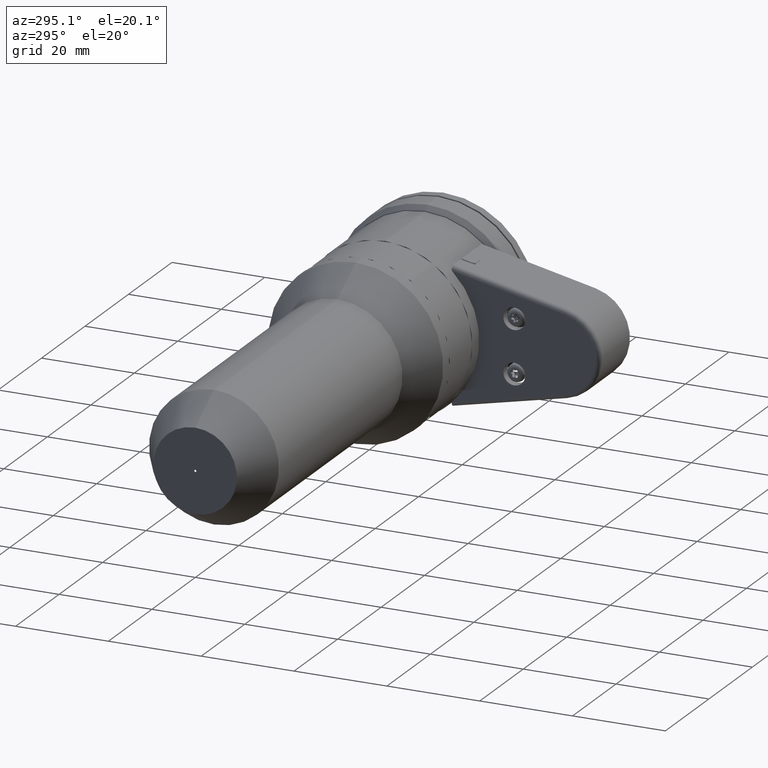
[diagram: clean part render]
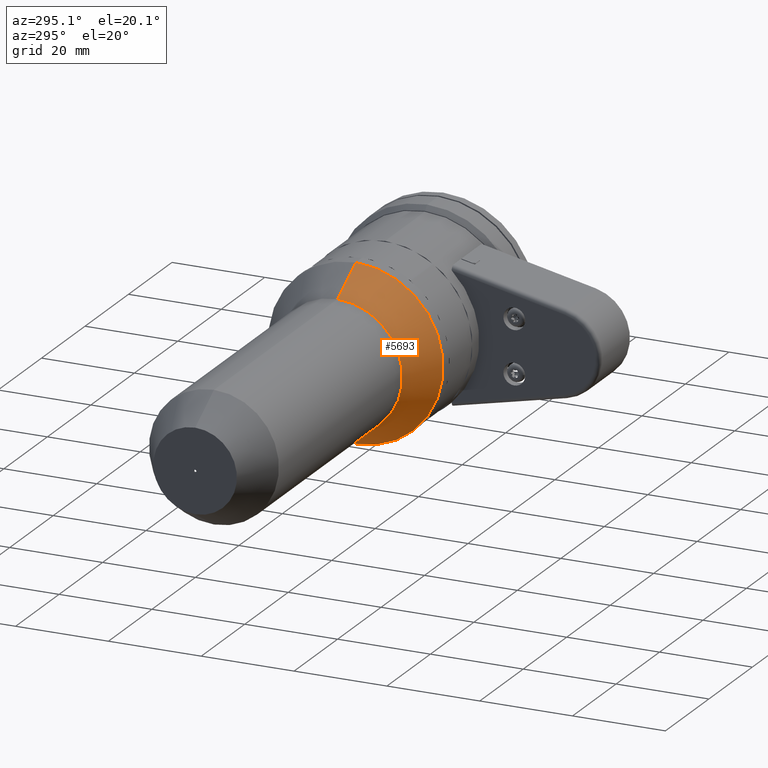
[diagram: same view with one face highlighted and labeled with its STEP entity id]
A machine part, auxiliary view. The second image highlights one B-rep face of the part: STEP entity #5693.
In plain terms, the highlighted conical surface has half-angle 30 deg.
Its self-contained STEP definition (entity closure, byte-faithful):
#105 = DIRECTION ( 'NONE',  ( -1.000000000000000000, 0.0000000000000000000, 0.0000000000000000000 ) ) ;
#146 = CARTESIAN_POINT ( 'NONE',  ( 65.35290000000000532, 0.0000000000000000000, 1.540743955509788682E-29 ) ) ;
#311 = CIRCLE ( 'NONE', #5209, 18.85000000000000142 ) ;
#502 = DIRECTION ( 'NONE',  ( 0.0000000000000000000, 0.0000000000000000000, 1.000000000000000000 ) ) ;
#554 = VERTEX_POINT ( 'NONE', #5051 ) ;
#721 = LINE ( 'NONE', #3957, #6114 ) ;
#807 = CIRCLE ( 'NONE', #1068, 14.00000000000000178 ) ;
#853 = LINE ( 'NONE', #7229, #2253 ) ;
#875 = DIRECTION ( 'NONE',  ( 0.0000000000000000000, 0.0000000000000000000, -1.000000000000000000 ) ) ;
#1068 = AXIS2_PLACEMENT_3D ( 'NONE', #146, #105, #5156 ) ;
#1302 = EDGE_CURVE ( 'NONE', #6733, #3465, #853, .T. ) ;
#1443 = DIRECTION ( 'NONE',  ( 1.000000000000000000, 0.0000000000000000000, 0.0000000000000000000 ) ) ;
#1653 = ORIENTED_EDGE ( 'NONE', *, *, #1302, .F. ) ;
#2253 = VECTOR ( 'NONE', #2752, 1000.000000000000227 ) ;
#2752 = DIRECTION ( 'NONE',  ( 0.8660254037844373753, 6.123233995736791920E-17, 0.5000000000000021094 ) ) ;
#2939 = ORIENTED_EDGE ( 'NONE', *, *, #4702, .T. ) ;
#3428 = EDGE_CURVE ( 'NONE', #4093, #6733, #807, .T. ) ;
#3465 = VERTEX_POINT ( 'NONE', #7111 ) ;
#3867 = ORIENTED_EDGE ( 'NONE', *, *, #7945, .T. ) ;
#3957 = CARTESIAN_POINT ( 'NONE',  ( 73.75334641670900737, 0.0000000000000000000, -18.85000000000000142 ) ) ;
#4093 = VERTEX_POINT ( 'NONE', #4640 ) ;
#4440 = CARTESIAN_POINT ( 'NONE',  ( 65.35290000000000532, 0.0000000000000000000, 14.00000000000000178 ) ) ;
#4561 = FACE_OUTER_BOUND ( 'NONE', #7468, .T. ) ;
#4640 = CARTESIAN_POINT ( 'NONE',  ( 65.35290000000000532, 1.714505518806294835E-15, -14.00000000000000178 ) ) ;
#4702 = EDGE_CURVE ( 'NONE', #4093, #554, #721, .T. ) ;
#5051 = CARTESIAN_POINT ( 'NONE',  ( 73.75334641670900737, 0.0000000000000000000, -18.85000000000000142 ) ) ;
#5106 = CONICAL_SURFACE ( 'NONE', #6158, 18.85000000000000142, 0.5235987755983013692 ) ;
#5156 = DIRECTION ( 'NONE',  ( 0.0000000000000000000, 0.0000000000000000000, 1.000000000000000000 ) ) ;
#5206 = ORIENTED_EDGE ( 'NONE', *, *, #3428, .F. ) ;
#5209 = AXIS2_PLACEMENT_3D ( 'NONE', #8135, #5642, #502 ) ;
#5642 = DIRECTION ( 'NONE',  ( -1.000000000000000000, 0.0000000000000000000, 0.0000000000000000000 ) ) ;
#5693 = ADVANCED_FACE ( 'NONE', ( #4561 ), #5106, .T. ) ;
#5737 = DIRECTION ( 'NONE',  ( 0.8660254037844373753, 0.0000000000000000000, -0.5000000000000021094 ) ) ;
#6114 = VECTOR ( 'NONE', #5737, 1000.000000000000227 ) ;
#6158 = AXIS2_PLACEMENT_3D ( 'NONE', #7670, #1443, #875 ) ;
#6733 = VERTEX_POINT ( 'NONE', #4440 ) ;
#7111 = CARTESIAN_POINT ( 'NONE',  ( 73.75334641670900737, 2.308459216392761329E-15, 18.85000000000000142 ) ) ;
#7229 = CARTESIAN_POINT ( 'NONE',  ( 73.75334641670900737, 2.308459216392761329E-15, 18.85000000000000142 ) ) ;
#7468 = EDGE_LOOP ( 'NONE', ( #1653, #5206, #2939, #3867 ) ) ;
#7670 = CARTESIAN_POINT ( 'NONE',  ( 73.75334641670900737, 0.0000000000000000000, 1.232595164407830946E-29 ) ) ;
#7945 = EDGE_CURVE ( 'NONE', #554, #3465, #311, .T. ) ;
#8135 = CARTESIAN_POINT ( 'NONE',  ( 73.75334641670900737, 0.0000000000000000000, 1.232595164407830946E-29 ) ) ;